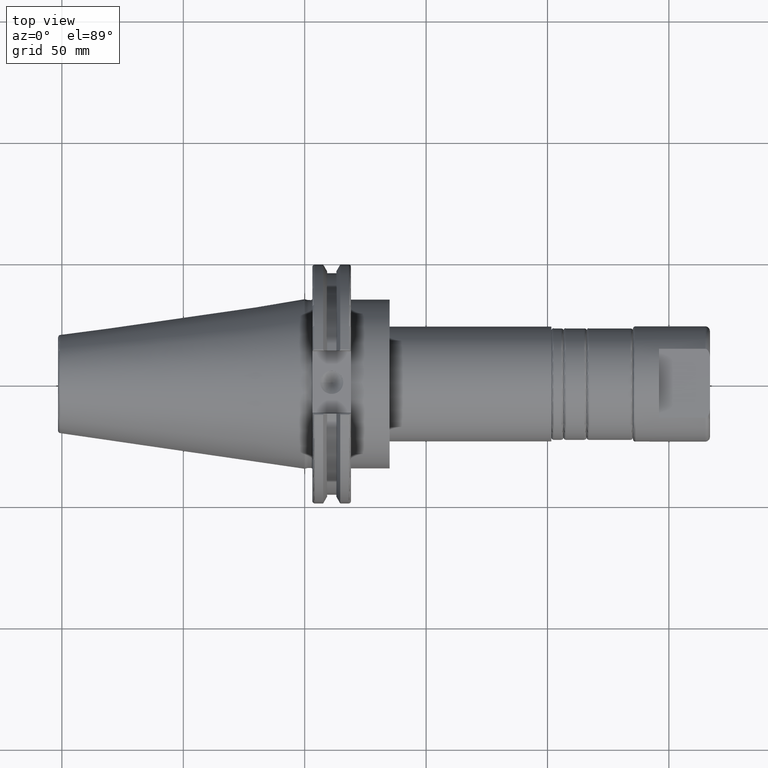
[diagram: clean part render]
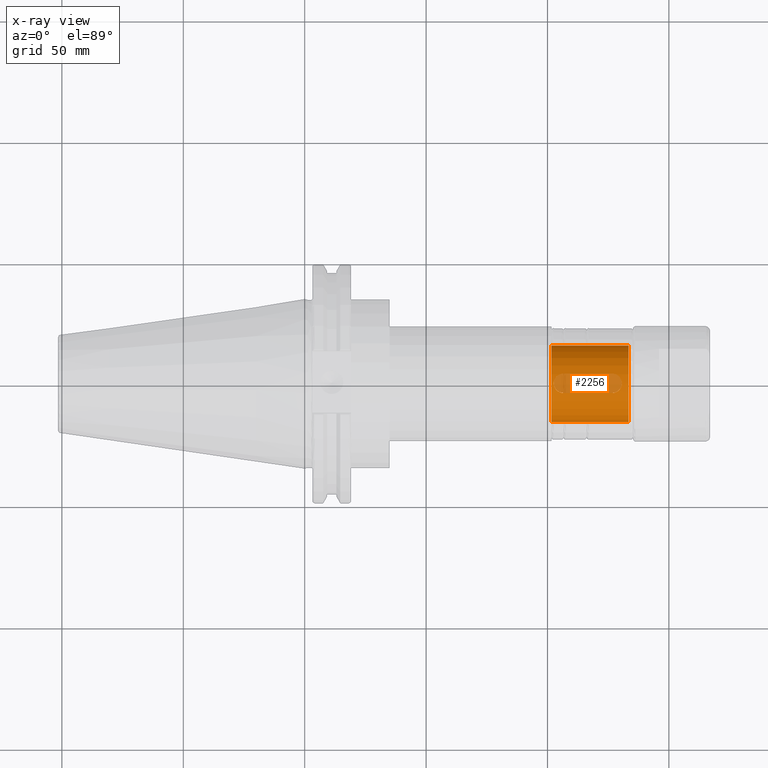
[diagram: x-ray — body ghosted, one internal face saturated and labeled with its STEP entity id]
A machine part, top view, then the same camera in x-ray: the body is ghosted and one INTERNAL B-rep face — a face not visible from any outside direction — is saturated and labeled: STEP entity #2256.
In plain terms, the highlighted cylindrical surface (bore or boss wall) has radius 15.875 mm, axis along (1, 0, 0).
Its self-contained STEP definition (entity closure, byte-faithful):
#554=FACE_BOUND('',#847,.T.);
#575=CIRCLE('',#2571,15.875);
#576=CIRCLE('',#2573,15.875);
#676=B_SPLINE_CURVE_WITH_KNOTS('',3,(#3621,#3622,#3623,#3624,#3625,#3626,
#3627,#3628,#3629,#3630,#3631,#3632,#3633,#3634,#3635,#3636,#3637,#3638),
 .UNSPECIFIED.,.F.,.F.,(4,2,2,2,2,2,2,2,4),(-1.20156553650686,-1.05135934096545,
-0.901153145424046,-0.750967956838738,-0.60078276825343,-0.450597579668122,
-0.300412391082814,-0.150206195541407,0.),.UNSPECIFIED.);
#677=B_SPLINE_CURVE_WITH_KNOTS('',3,(#3649,#3650,#3651,#3652,#3653,#3654,
#3655,#3656,#3657,#3658,#3659,#3660,#3661,#3662,#3663,#3664,#3665,#3666),
 .UNSPECIFIED.,.F.,.F.,(4,2,2,2,2,2,2,2,4),(0.,0.150206195541407,0.300412391082814,
0.450597579668122,0.60078276825343,0.750967956838738,0.901153145424047,
1.05135934096545,1.20156553650686),.UNSPECIFIED.);
#702=CYLINDRICAL_SURFACE('',#2572,15.875);
#734=FACE_OUTER_BOUND('',#846,.T.);
#846=EDGE_LOOP('',(#1693,#1694,#1695,#1696));
#847=EDGE_LOOP('',(#1697,#1698,#1699,#1700));
#962=LINE('',#3613,#1092);
#967=LINE('',#3644,#1097);
#972=LINE('',#3688,#1102);
#1092=VECTOR('',#2868,10.);
#1097=VECTOR('',#2879,10.);
#1102=VECTOR('',#2912,15.875);
#1222=VERTEX_POINT('',#3611);
#1223=VERTEX_POINT('',#3612);
#1226=VERTEX_POINT('',#3620);
#1228=VERTEX_POINT('',#3643);
#1234=VERTEX_POINT('',#3683);
#1235=VERTEX_POINT('',#3686);
#1397=EDGE_CURVE('',#1222,#1223,#962,.T.);
#1401=EDGE_CURVE('',#1223,#1226,#676,.T.);
#1404=EDGE_CURVE('',#1226,#1228,#967,.T.);
#1407=EDGE_CURVE('',#1228,#1222,#677,.T.);
#1415=EDGE_CURVE('',#1234,#1234,#575,.T.);
#1416=EDGE_CURVE('',#1235,#1235,#576,.T.);
#1417=EDGE_CURVE('',#1235,#1234,#972,.T.);
#1693=ORIENTED_EDGE('',*,*,#1416,.F.);
#1694=ORIENTED_EDGE('',*,*,#1417,.T.);
#1695=ORIENTED_EDGE('',*,*,#1415,.T.);
#1696=ORIENTED_EDGE('',*,*,#1417,.F.);
#1697=ORIENTED_EDGE('',*,*,#1404,.T.);
#1698=ORIENTED_EDGE('',*,*,#1407,.T.);
#1699=ORIENTED_EDGE('',*,*,#1397,.T.);
#1700=ORIENTED_EDGE('',*,*,#1401,.T.);
#2256=ADVANCED_FACE('',(#734,#554),#702,.T.);
#2571=AXIS2_PLACEMENT_3D('',#3684,#2906,#2907);
#2572=AXIS2_PLACEMENT_3D('',#3685,#2908,#2909);
#2573=AXIS2_PLACEMENT_3D('',#3687,#2910,#2911);
#2868=DIRECTION('',(1.,0.,0.));
#2879=DIRECTION('',(-1.,0.,0.));
#2906=DIRECTION('center_axis',(1.,0.,0.));
#2907=DIRECTION('ref_axis',(0.,0.,-1.));
#2908=DIRECTION('center_axis',(1.,0.,0.));
#2909=DIRECTION('ref_axis',(0.,0.,1.));
#2910=DIRECTION('center_axis',(1.,0.,0.));
#2911=DIRECTION('ref_axis',(0.,0.,-1.));
#2912=DIRECTION('',(-1.,0.,0.));
#3611=CARTESIAN_POINT('',(106.569,3.969,15.3708381033697));
#3612=CARTESIAN_POINT('',(126.631,3.96900000000001,15.3708381033697));
#3613=CARTESIAN_POINT('',(117.475,3.96900000000001,15.3708381033697));
#3620=CARTESIAN_POINT('',(126.631,-3.96900000000001,15.3708381033697));
#3621=CARTESIAN_POINT('Ctrl Pts',(126.631,3.96900000000001,15.3708381033697));
#3622=CARTESIAN_POINT('Ctrl Pts',(127.131687318471,3.96900000000001,15.3708381033697));
#3623=CARTESIAN_POINT('Ctrl Pts',(127.664217285972,3.86850104781892,15.3978501450868));
#3624=CARTESIAN_POINT('Ctrl Pts',(128.641420621871,3.46280935932795,15.4941291976823));
#3625=CARTESIAN_POINT('Ctrl Pts',(129.086288854918,3.15772477414064,15.5618679144409));
#3626=CARTESIAN_POINT('Ctrl Pts',(129.78867565486,2.45533797419875,15.6880285107587));
#3627=CARTESIAN_POINT('Ctrl Pts',(130.093798537718,2.01044928392125,15.7548310124302));
#3628=CARTESIAN_POINT('Ctrl Pts',(130.499518186154,1.0331734085729,15.848948206292));
#3629=CARTESIAN_POINT('Ctrl Pts',(130.6,0.500617295284394,15.875));
#3630=CARTESIAN_POINT('Ctrl Pts',(130.6,-0.500617295284326,15.875));
#3631=CARTESIAN_POINT('Ctrl Pts',(130.499518186154,-1.03317340857284,15.848948206292));
#3632=CARTESIAN_POINT('Ctrl Pts',(130.093798537718,-2.0104492839212,15.7548310124302));
#3633=CARTESIAN_POINT('Ctrl Pts',(129.78867565486,-2.45533797419869,15.6880285107587));
#3634=CARTESIAN_POINT('Ctrl Pts',(129.086288854918,-3.15772477414058,15.5618679144409));
#3635=CARTESIAN_POINT('Ctrl Pts',(128.641420621871,-3.46280935932789,15.4941291976823));
#3636=CARTESIAN_POINT('Ctrl Pts',(127.664217285972,-3.86850104781885,15.3978501450868));
#3637=CARTESIAN_POINT('Ctrl Pts',(127.131687318471,-3.96899999999994,15.3708381033697));
#3638=CARTESIAN_POINT('Ctrl Pts',(126.631,-3.96899999999994,15.3708381033697));
#3643=CARTESIAN_POINT('',(106.569,-3.96900000000001,15.3708381033697));
#3644=CARTESIAN_POINT('',(117.475,-3.96900000000001,15.3708381033697));
#3649=CARTESIAN_POINT('Ctrl Pts',(106.569,-3.96899999999995,15.3708381033697));
#3650=CARTESIAN_POINT('Ctrl Pts',(106.068312681529,-3.96899999999995,15.3708381033697));
#3651=CARTESIAN_POINT('Ctrl Pts',(105.535782714028,-3.86850104781886,15.3978501450868));
#3652=CARTESIAN_POINT('Ctrl Pts',(104.558579378128,-3.46280935932789,15.4941291976823));
#3653=CARTESIAN_POINT('Ctrl Pts',(104.113711145082,-3.15772477414058,15.5618679144409));
#3654=CARTESIAN_POINT('Ctrl Pts',(103.41132434514,-2.45533797419869,15.6880285107587));
#3655=CARTESIAN_POINT('Ctrl Pts',(103.106201462282,-2.01044928392121,15.7548310124302));
#3656=CARTESIAN_POINT('Ctrl Pts',(102.700481813846,-1.03317340857287,15.848948206292));
#3657=CARTESIAN_POINT('Ctrl Pts',(102.6,-0.500617295284332,15.875));
#3658=CARTESIAN_POINT('Ctrl Pts',(102.6,0.500617295284389,15.875));
#3659=CARTESIAN_POINT('Ctrl Pts',(102.700481813846,1.03317340857292,15.848948206292));
#3660=CARTESIAN_POINT('Ctrl Pts',(103.106201462282,2.01044928392127,15.7548310124302));
#3661=CARTESIAN_POINT('Ctrl Pts',(103.41132434514,2.45533797419875,15.6880285107587));
#3662=CARTESIAN_POINT('Ctrl Pts',(104.113711145082,3.15772477414064,15.5618679144409));
#3663=CARTESIAN_POINT('Ctrl Pts',(104.558579378128,3.46280935932795,15.4941291976823));
#3664=CARTESIAN_POINT('Ctrl Pts',(105.535782714028,3.86850104781891,15.3978501450868));
#3665=CARTESIAN_POINT('Ctrl Pts',(106.068312681529,3.969,15.3708381033697));
#3666=CARTESIAN_POINT('Ctrl Pts',(106.569,3.969,15.3708381033697));
#3683=CARTESIAN_POINT('',(101.6,1.94412679364643E-15,-15.875));
#3684=CARTESIAN_POINT('Origin',(101.6,0.,0.));
#3685=CARTESIAN_POINT('Origin',(117.475,0.,0.));
#3686=CARTESIAN_POINT('',(133.35,1.94412679364643E-15,-15.875));
#3687=CARTESIAN_POINT('Origin',(133.35,0.,0.));
#3688=CARTESIAN_POINT('',(117.475,1.94412679364643E-15,-15.875));